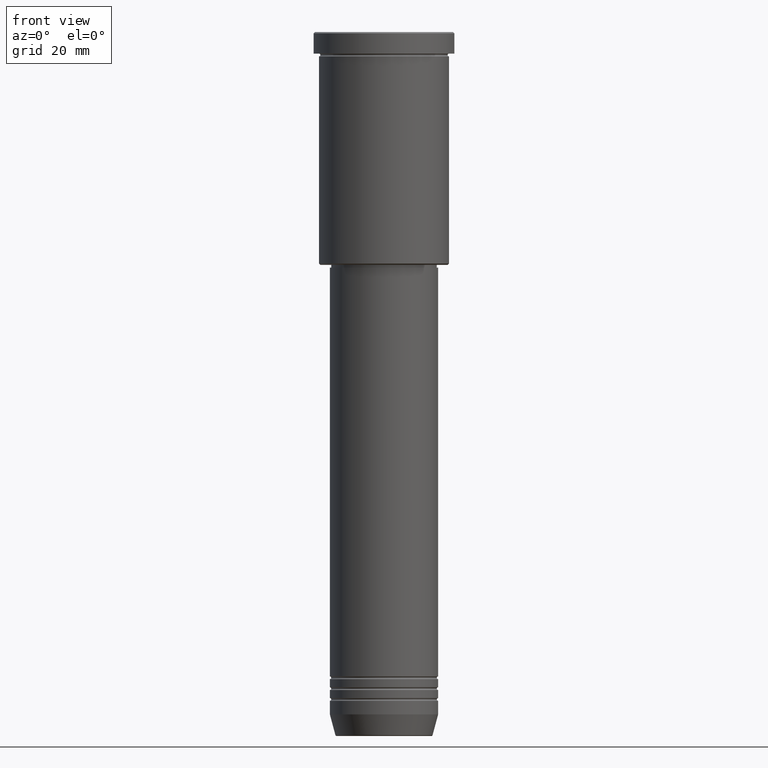
[diagram: clean part render]
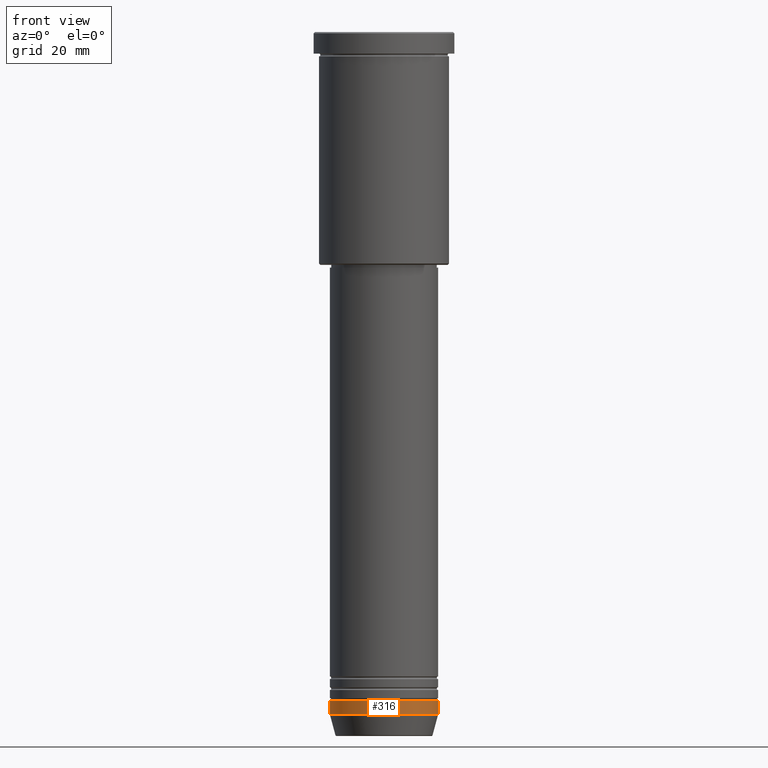
[diagram: same view with one face highlighted and labeled with its STEP entity id]
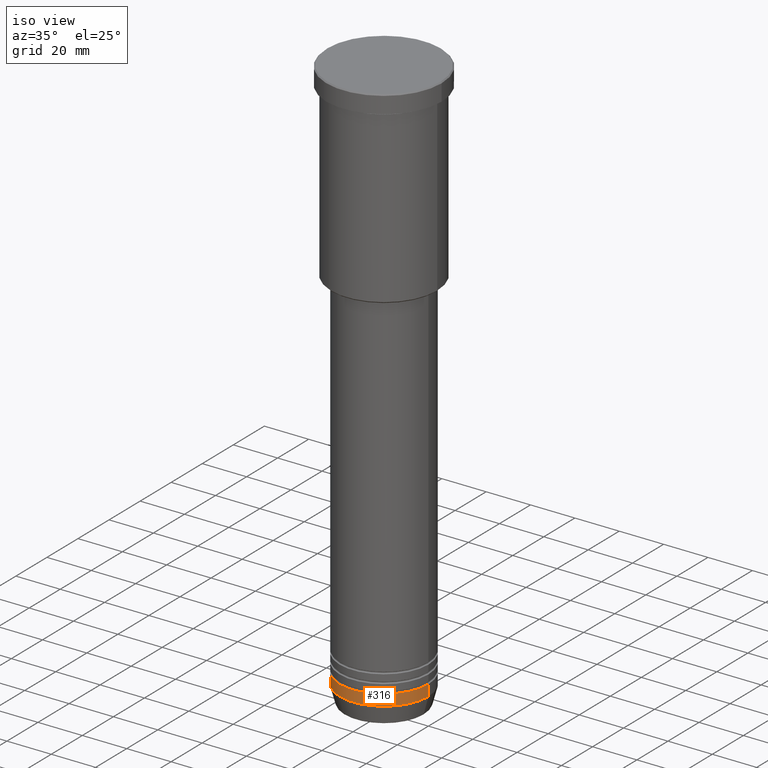
[diagram: same view with one face highlighted and labeled with its STEP entity id]
A machine part, front view. The second image highlights one B-rep face of the part: STEP entity #316.
A second angle (iso view) of the same face is appended — the face is thin or edge-on in the first view.
In plain terms, the highlighted cylindrical surface (partial cylindrical patch) has radius 20 mm, axis along (-0, -0, 1).
Its self-contained STEP definition (entity closure, byte-faithful):
#9 = CARTESIAN_POINT ( 'NONE',  ( -20.00000000000000355, 2.449293598294706907E-15, 0.000000000000000000 ) ) ;
#31 = CARTESIAN_POINT ( 'NONE',  ( -20.00000000000000000, 2.449293598294706513E-15, -247.0000000000000000 ) ) ;
#45 = AXIS2_PLACEMENT_3D ( 'NONE', #840, #769, #751 ) ;
#75 = ORIENTED_EDGE ( 'NONE', *, *, #180, .T. ) ;
#180 = EDGE_CURVE ( 'NONE', #181, #613, #802, .T. ) ;
#181 = VERTEX_POINT ( 'NONE', #855 ) ;
#198 = AXIS2_PLACEMENT_3D ( 'NONE', #701, #1070, #516 ) ;
#239 = DIRECTION ( 'NONE',  ( -0.000000000000000000, -0.000000000000000000, 1.000000000000000000 ) ) ;
#316 = ADVANCED_FACE ( 'NONE', ( #1078 ), #510, .T. ) ;
#325 = DIRECTION ( 'NONE',  ( 1.000000000000000000, 0.000000000000000000, 0.000000000000000000 ) ) ;
#331 = VECTOR ( 'NONE', #921, 1000.000000000000000 ) ;
#362 = EDGE_LOOP ( 'NONE', ( #918, #75, #584, #1087 ) ) ;
#384 = CARTESIAN_POINT ( 'NONE',  ( 20.00000000000000355, 0.000000000000000000, -252.0000000000000000 ) ) ;
#397 = VERTEX_POINT ( 'NONE', #683 ) ;
#468 = LINE ( 'NONE', #9, #887 ) ;
#510 = CYLINDRICAL_SURFACE ( 'NONE', #904, 20.00000000000000355 ) ;
#516 = DIRECTION ( 'NONE',  ( 1.000000000000000000, 0.000000000000000000, 0.000000000000000000 ) ) ;
#548 = LINE ( 'NONE', #1092, #331 ) ;
#584 = ORIENTED_EDGE ( 'NONE', *, *, #837, .T. ) ;
#613 = VERTEX_POINT ( 'NONE', #384 ) ;
#637 = VERTEX_POINT ( 'NONE', #31 ) ;
#683 = CARTESIAN_POINT ( 'NONE',  ( 20.00000000000000000, 0.000000000000000000, -247.0000000000000000 ) ) ;
#701 = CARTESIAN_POINT ( 'NONE',  ( 0.000000000000000000, 0.000000000000000000, -247.0000000000000000 ) ) ;
#729 = DIRECTION ( 'NONE',  ( -0.000000000000000000, -0.000000000000000000, 1.000000000000000000 ) ) ;
#751 = DIRECTION ( 'NONE',  ( 1.000000000000000000, 0.000000000000000000, 0.000000000000000000 ) ) ;
#769 = DIRECTION ( 'NONE',  ( -0.000000000000000000, -0.000000000000000000, 1.000000000000000000 ) ) ;
#802 = CIRCLE ( 'NONE', #45, 20.00000000000000355 ) ;
#837 = EDGE_CURVE ( 'NONE', #613, #397, #548, .T. ) ;
#840 = CARTESIAN_POINT ( 'NONE',  ( 0.000000000000000000, 0.000000000000000000, -252.0000000000000000 ) ) ;
#855 = CARTESIAN_POINT ( 'NONE',  ( -20.00000000000000355, 2.449293598294706907E-15, -252.0000000000000000 ) ) ;
#861 = EDGE_CURVE ( 'NONE', #181, #637, #468, .T. ) ;
#887 = VECTOR ( 'NONE', #729, 1000.000000000000000 ) ;
#904 = AXIS2_PLACEMENT_3D ( 'NONE', #988, #239, #325 ) ;
#918 = ORIENTED_EDGE ( 'NONE', *, *, #861, .F. ) ;
#921 = DIRECTION ( 'NONE',  ( -0.000000000000000000, -0.000000000000000000, 1.000000000000000000 ) ) ;
#988 = CARTESIAN_POINT ( 'NONE',  ( 0.000000000000000000, 0.000000000000000000, 0.000000000000000000 ) ) ;
#1026 = CIRCLE ( 'NONE', #198, 20.00000000000000000 ) ;
#1070 = DIRECTION ( 'NONE',  ( -0.000000000000000000, -0.000000000000000000, 1.000000000000000000 ) ) ;
#1078 = FACE_OUTER_BOUND ( 'NONE', #362, .T. ) ;
#1087 = ORIENTED_EDGE ( 'NONE', *, *, #1091, .F. ) ;
#1091 = EDGE_CURVE ( 'NONE', #637, #397, #1026, .T. ) ;
#1092 = CARTESIAN_POINT ( 'NONE',  ( 20.00000000000000355, 0.000000000000000000, 0.000000000000000000 ) ) ;